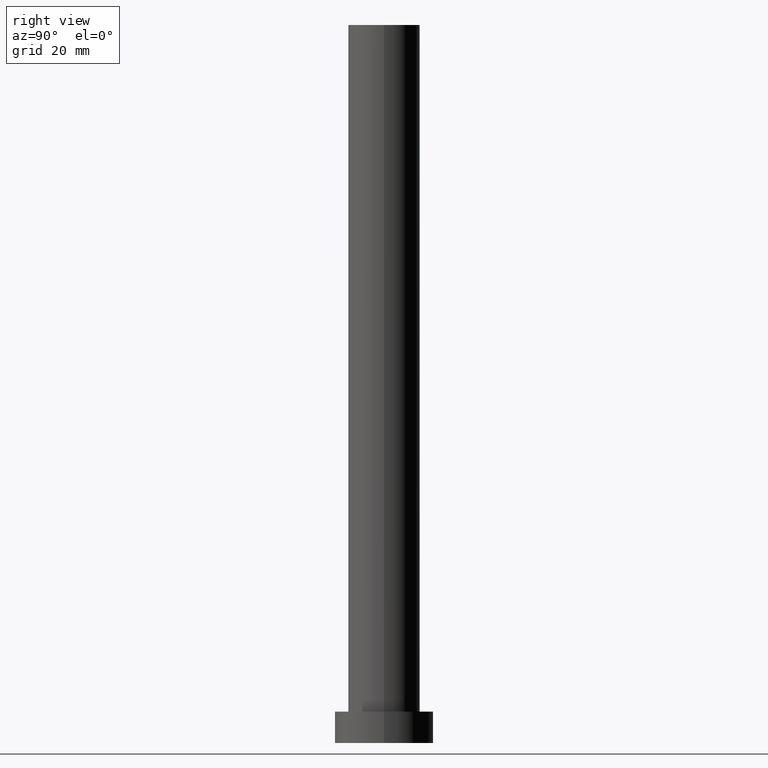
[diagram: clean part render]
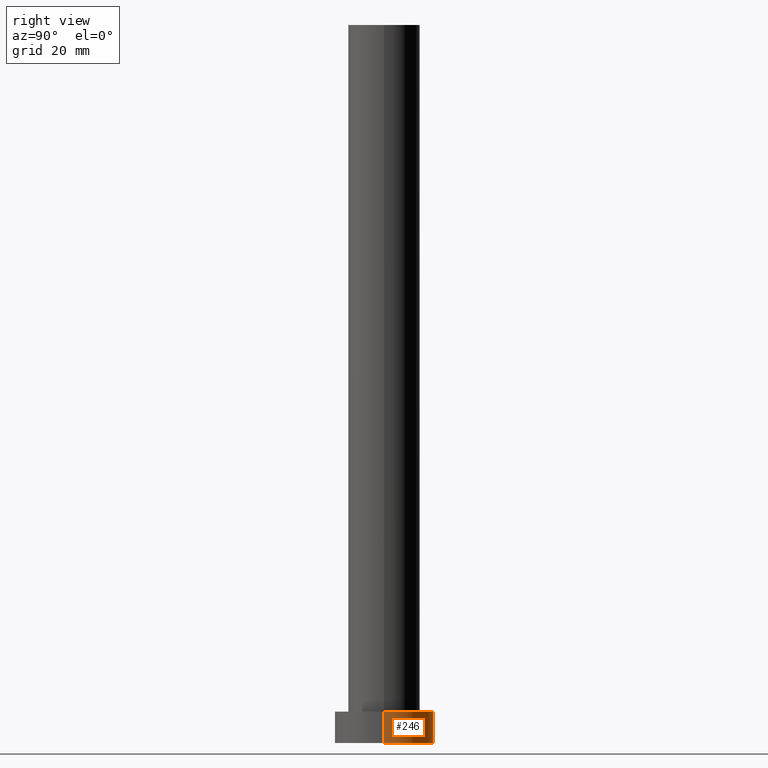
[diagram: same view with one face highlighted and labeled with its STEP entity id]
A machine part, right view. The second image highlights one B-rep face of the part: STEP entity #246.
In plain terms, the highlighted cylindrical surface (partial cylindrical patch) has radius 11 mm, axis along (-0, -0, -1).
Its self-contained STEP definition (entity closure, byte-faithful):
#4 = LINE ( 'NONE', #167, #87 ) ;
#7 = CARTESIAN_POINT ( 'NONE',  ( 0.000000000000000000, 0.000000000000000000, 0.000000000000000000 ) ) ;
#13 = VERTEX_POINT ( 'NONE', #44 ) ;
#18 = ORIENTED_EDGE ( 'NONE', *, *, #144, .F. ) ;
#19 = CIRCLE ( 'NONE', #79, 11.00000000000000000 ) ;
#22 = DIRECTION ( 'NONE',  ( -0.000000000000000000, -0.000000000000000000, -1.000000000000000000 ) ) ;
#27 = CARTESIAN_POINT ( 'NONE',  ( 0.000000000000000000, 0.000000000000000000, 7.000000000000000000 ) ) ;
#28 = DIRECTION ( 'NONE',  ( 1.000000000000000000, 0.000000000000000000, 0.000000000000000000 ) ) ;
#30 = CIRCLE ( 'NONE', #183, 11.00000000000000000 ) ;
#32 = EDGE_CURVE ( 'NONE', #162, #96, #4, .T. ) ;
#44 = CARTESIAN_POINT ( 'NONE',  ( -11.00000000000000000, 0.000000000000000000, 0.000000000000000000 ) ) ;
#51 = FACE_OUTER_BOUND ( 'NONE', #64, .T. ) ;
#52 = DIRECTION ( 'NONE',  ( 0.000000000000000000, 0.000000000000000000, 1.000000000000000000 ) ) ;
#64 = EDGE_LOOP ( 'NONE', ( #141, #255, #239, #18 ) ) ;
#79 = AXIS2_PLACEMENT_3D ( 'NONE', #170, #52, #145 ) ;
#85 = AXIS2_PLACEMENT_3D ( 'NONE', #27, #192, #134 ) ;
#87 = VECTOR ( 'NONE', #22, 1000.000000000000000 ) ;
#90 = CARTESIAN_POINT ( 'NONE',  ( -11.00000000000000000, 0.000000000000000000, 7.000000000000000000 ) ) ;
#92 = CARTESIAN_POINT ( 'NONE',  ( 11.00000000000000000, 1.347111479062088405E-15, 0.000000000000000000 ) ) ;
#96 = VERTEX_POINT ( 'NONE', #92 ) ;
#99 = VERTEX_POINT ( 'NONE', #90 ) ;
#113 = LINE ( 'NONE', #169, #195 ) ;
#127 = EDGE_CURVE ( 'NONE', #96, #13, #30, .T. ) ;
#134 = DIRECTION ( 'NONE',  ( -1.000000000000000000, 0.000000000000000000, 0.000000000000000000 ) ) ;
#141 = ORIENTED_EDGE ( 'NONE', *, *, #163, .F. ) ;
#144 = EDGE_CURVE ( 'NONE', #99, #13, #113, .T. ) ;
#145 = DIRECTION ( 'NONE',  ( 1.000000000000000000, 0.000000000000000000, 0.000000000000000000 ) ) ;
#149 = CARTESIAN_POINT ( 'NONE',  ( 11.00000000000000000, 1.347111479062088405E-15, 7.000000000000000000 ) ) ;
#162 = VERTEX_POINT ( 'NONE', #149 ) ;
#163 = EDGE_CURVE ( 'NONE', #162, #99, #19, .T. ) ;
#167 = CARTESIAN_POINT ( 'NONE',  ( 11.00000000000000000, 1.347111479062088405E-15, 7.000000000000000000 ) ) ;
#169 = CARTESIAN_POINT ( 'NONE',  ( -11.00000000000000000, 0.000000000000000000, 7.000000000000000000 ) ) ;
#170 = CARTESIAN_POINT ( 'NONE',  ( 0.000000000000000000, 0.000000000000000000, 7.000000000000000000 ) ) ;
#183 = AXIS2_PLACEMENT_3D ( 'NONE', #7, #227, #28 ) ;
#192 = DIRECTION ( 'NONE',  ( -0.000000000000000000, -0.000000000000000000, -1.000000000000000000 ) ) ;
#195 = VECTOR ( 'NONE', #249, 1000.000000000000000 ) ;
#207 = CYLINDRICAL_SURFACE ( 'NONE', #85, 11.00000000000000000 ) ;
#227 = DIRECTION ( 'NONE',  ( 0.000000000000000000, 0.000000000000000000, 1.000000000000000000 ) ) ;
#239 = ORIENTED_EDGE ( 'NONE', *, *, #127, .T. ) ;
#246 = ADVANCED_FACE ( 'NONE', ( #51 ), #207, .T. ) ;
#249 = DIRECTION ( 'NONE',  ( -0.000000000000000000, -0.000000000000000000, -1.000000000000000000 ) ) ;
#255 = ORIENTED_EDGE ( 'NONE', *, *, #32, .T. ) ;